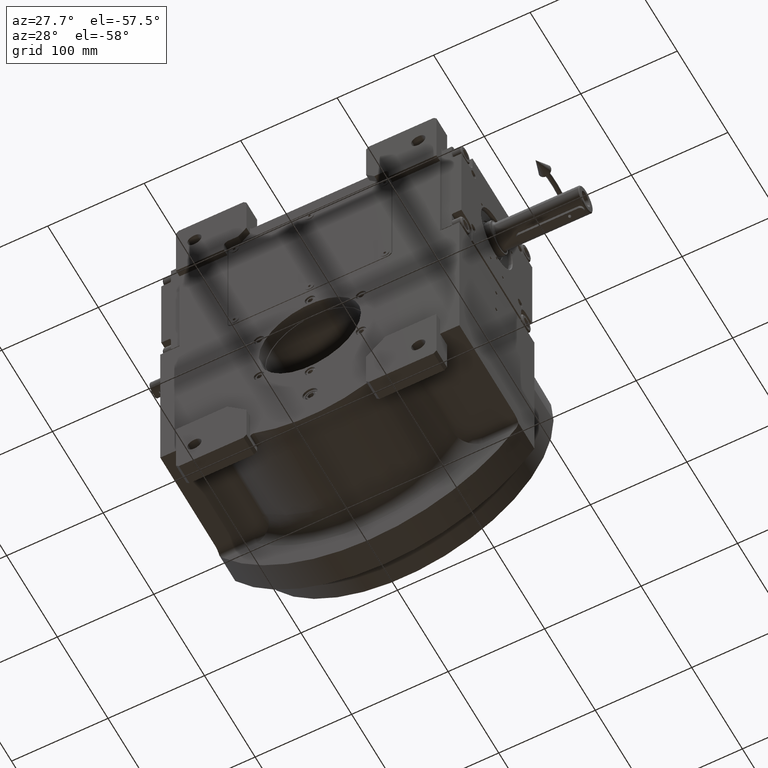
[diagram: clean part render]
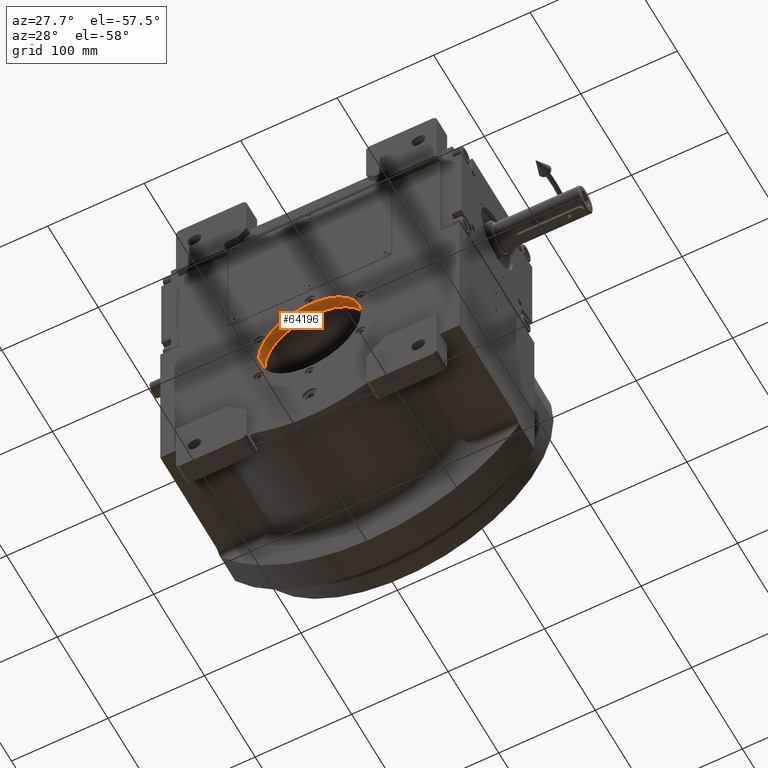
[diagram: same view with one face highlighted and labeled with its STEP entity id]
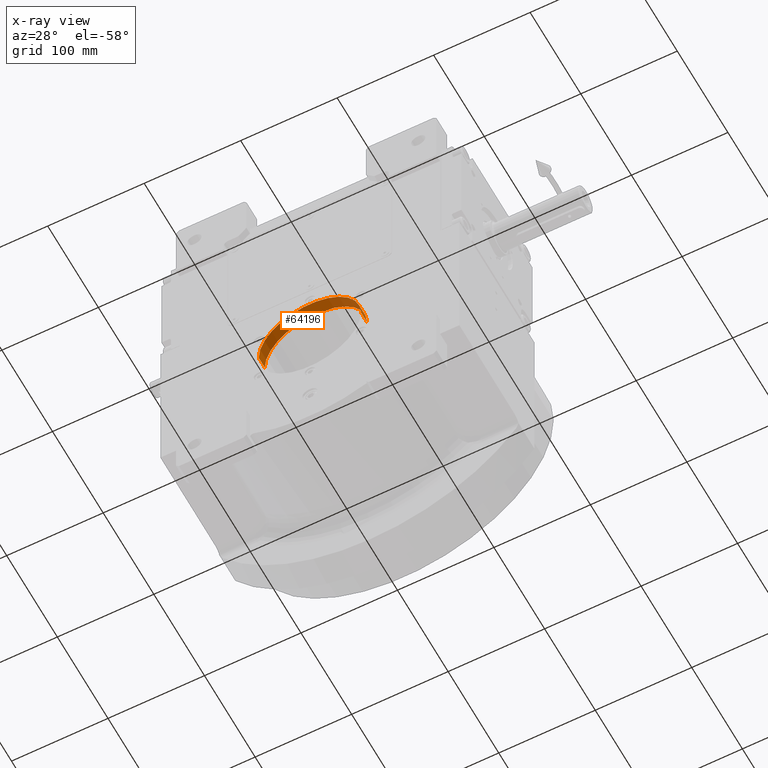
[diagram: x-ray of the same camera — body ghosted, the highlighted face saturated]
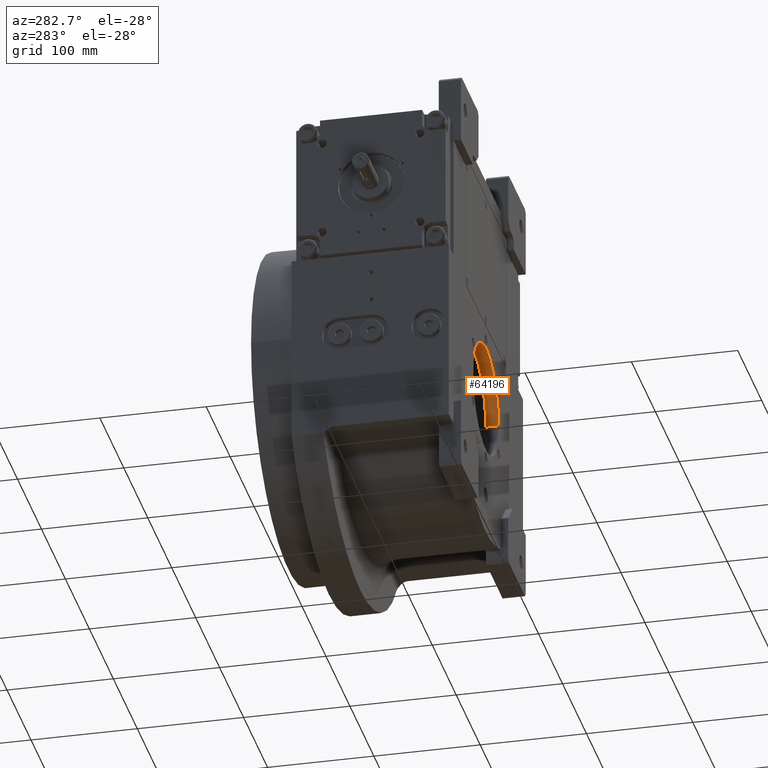
[diagram: same view with one face highlighted and labeled with its STEP entity id]
A machine part, auxiliary view. The second image highlights one B-rep face of the part: STEP entity #64196.
The next image is the same camera in x-ray: the body ghosted, the highlighted face saturated — about 0% of this face is hidden behind the body in this view.
A second angle (auxiliary view) of the same face is appended — the face is thin or edge-on in the first view.
In plain terms, the highlighted cylindrical surface (partial cylindrical patch) has radius 53 mm, axis along (0, -1, 0).
Its self-contained STEP definition (entity closure, byte-faithful):
#343 = VECTOR ( 'NONE', #8824, 1000.000000000000000 ) ;
#629 = CIRCLE ( 'NONE', #9660, 53.00000000000000000 ) ;
#3382 = VERTEX_POINT ( 'NONE', #32083 ) ;
#4526 = EDGE_CURVE ( 'NONE', #44726, #3382, #61626, .T. ) ;
#4626 = CARTESIAN_POINT ( 'NONE',  ( 0.000000000000000000, -73.00000000000000000, 2.718623921528999623E-14 ) ) ;
#4750 = CARTESIAN_POINT ( 'NONE',  ( -53.00000000000000000, -61.00000000000000000, 3.796313104778999617E-14 ) ) ;
#8814 = CARTESIAN_POINT ( 'NONE',  ( 0.000000000000000000, -61.00000000000000000, 2.498187497681999569E-14 ) ) ;
#8824 = DIRECTION ( 'NONE',  ( 0.000000000000000000, -1.000000000000000000, 0.000000000000000000 ) ) ;
#9660 = AXIS2_PLACEMENT_3D ( 'NONE', #56154, #67446, #45938 ) ;
#15486 = EDGE_CURVE ( 'NONE', #58176, #44726, #44202, .T. ) ;
#17140 = ORIENTED_EDGE ( 'NONE', *, *, #25941, .F. ) ;
#17160 = DIRECTION ( 'NONE',  ( 1.000000000000000000, 0.000000000000000000, 0.000000000000000000 ) ) ;
#19079 = CARTESIAN_POINT ( 'NONE',  ( -53.00000000000000000, -61.00000000000000000, 3.147250301229999613E-14 ) ) ;
#21090 = AXIS2_PLACEMENT_3D ( 'NONE', #4626, #63549, #26198 ) ;
#25007 = AXIS2_PLACEMENT_3D ( 'NONE', #8814, #41267, #17160 ) ;
#25941 = EDGE_CURVE ( 'NONE', #69058, #3382, #51141, .T. ) ;
#26198 = DIRECTION ( 'NONE',  ( 1.000000000000000000, 0.000000000000000000, 0.000000000000000000 ) ) ;
#32072 = ORIENTED_EDGE ( 'NONE', *, *, #48852, .F. ) ;
#32083 = CARTESIAN_POINT ( 'NONE',  ( -53.00000000000000000, -73.00000000000000000, 4.016749528624999711E-14 ) ) ;
#35256 = CARTESIAN_POINT ( 'NONE',  ( 53.00000000000000000, -73.00000000000000000, 2.069561117980999894E-14 ) ) ;
#35645 = CYLINDRICAL_SURFACE ( 'NONE', #25007, 53.00000000000000000 ) ;
#41267 = DIRECTION ( 'NONE',  ( 0.000000000000000000, -1.000000000000000000, 0.000000000000000000 ) ) ;
#43102 = ORIENTED_EDGE ( 'NONE', *, *, #4526, .T. ) ;
#44202 = LINE ( 'NONE', #66400, #68087 ) ;
#44726 = VERTEX_POINT ( 'NONE', #35256 ) ;
#45938 = DIRECTION ( 'NONE',  ( 1.000000000000000000, 0.000000000000000000, 0.000000000000000000 ) ) ;
#46552 = FACE_OUTER_BOUND ( 'NONE', #50060, .T. ) ;
#48852 = EDGE_CURVE ( 'NONE', #58176, #69058, #629, .T. ) ;
#49487 = DIRECTION ( 'NONE',  ( 0.000000000000000000, -1.000000000000000000, 0.000000000000000000 ) ) ;
#50060 = EDGE_LOOP ( 'NONE', ( #17140, #32072, #58261, #43102 ) ) ;
#51141 = LINE ( 'NONE', #19079, #343 ) ;
#56154 = CARTESIAN_POINT ( 'NONE',  ( 0.000000000000000000, -61.00000000000000000, 2.498187497681999569E-14 ) ) ;
#58176 = VERTEX_POINT ( 'NONE', #65418 ) ;
#58261 = ORIENTED_EDGE ( 'NONE', *, *, #15486, .T. ) ;
#61626 = CIRCLE ( 'NONE', #21090, 53.00000000000000000 ) ;
#63549 = DIRECTION ( 'NONE',  ( 0.000000000000000000, -1.000000000000000000, 0.000000000000000000 ) ) ;
#64196 = ADVANCED_FACE ( 'NONE', ( #46552 ), #35645, .F. ) ;
#65418 = CARTESIAN_POINT ( 'NONE',  ( 53.00000000000000000, -61.00000000000000000, 1.849124694134000156E-14 ) ) ;
#66400 = CARTESIAN_POINT ( 'NONE',  ( 53.00000000000000000, -61.00000000000000000, 1.849124694134000156E-14 ) ) ;
#67446 = DIRECTION ( 'NONE',  ( 0.000000000000000000, -1.000000000000000000, 0.000000000000000000 ) ) ;
#68087 = VECTOR ( 'NONE', #49487, 1000.000000000000000 ) ;
#69058 = VERTEX_POINT ( 'NONE', #4750 ) ;